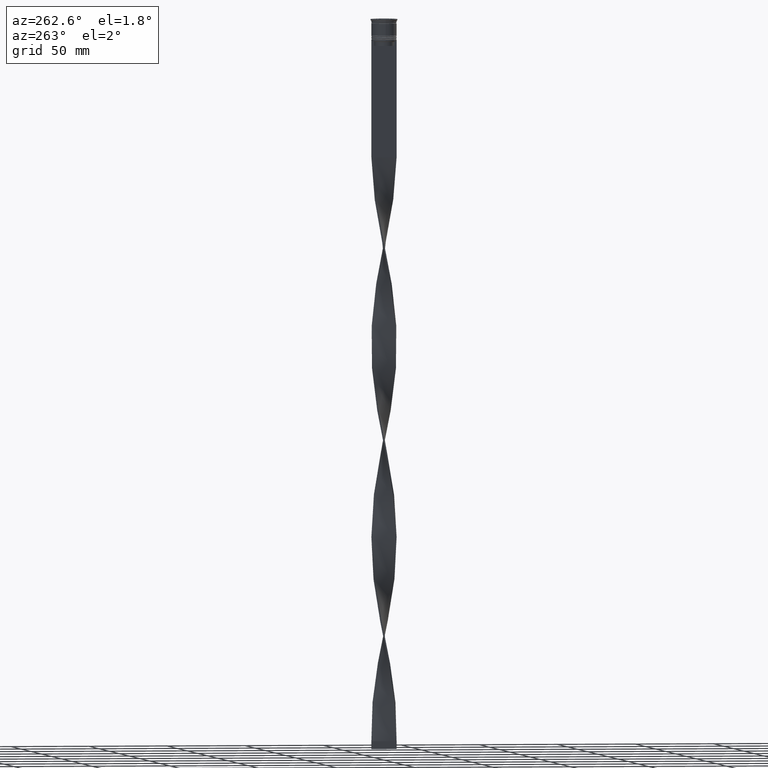
[diagram: clean part render]
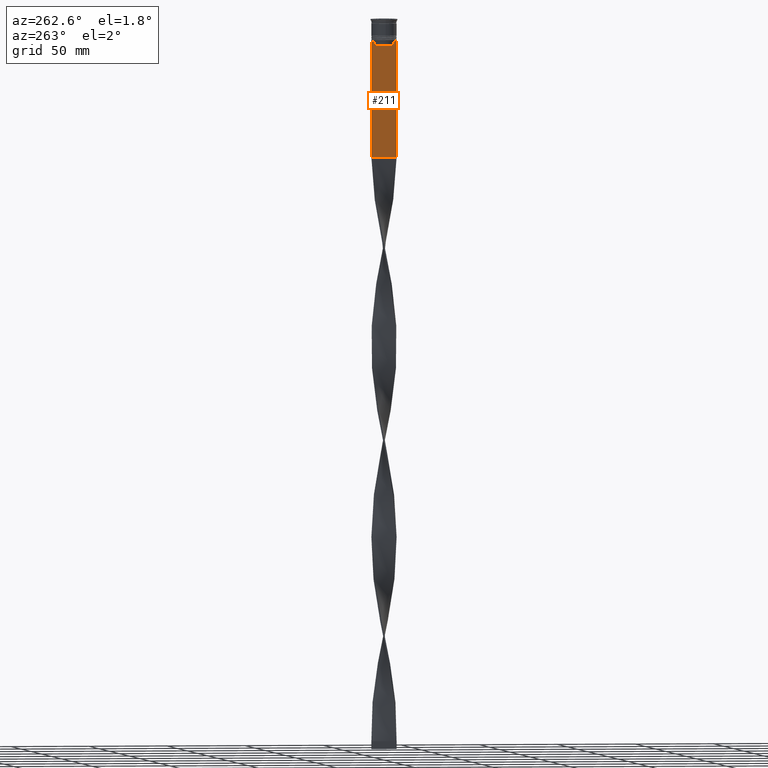
[diagram: same view with one face highlighted and labeled with its STEP entity id]
A machine part, auxiliary view. The second image highlights one B-rep face of the part: STEP entity #211.
In plain terms, the highlighted planar face has unit normal (-1, 0, 0).
Its self-contained STEP definition (entity closure, byte-faithful):
#183 = EDGE_CURVE ( 'NONE', #2274, #248, #3010, .T. ) ;
#211 = ADVANCED_FACE ( 'NONE', ( #3077 ), #2670, .T. ) ;
#240 = EDGE_CURVE ( 'NONE', #1581, #2274, #2376, .T. ) ;
#248 = VERTEX_POINT ( 'NONE', #2468 ) ;
#269 = CARTESIAN_POINT ( 'NONE',  ( -0.4999999999999998890, 7.999999999999996447, -14.00000000000000178 ) ) ;
#288 = CARTESIAN_POINT ( 'NONE',  ( -0.4999999999999998890, -6.380438856379708312, 0.000000000000000000 ) ) ;
#342 = VECTOR ( 'NONE', #2603, 1000.000000000000000 ) ;
#411 = AXIS2_PLACEMENT_3D ( 'NONE', #3398, #692, #2032 ) ;
#486 = EDGE_CURVE ( 'NONE', #1112, #2443, #1568, .T. ) ;
#494 = VECTOR ( 'NONE', #726, 1000.000000000000000 ) ;
#531 = DIRECTION ( 'NONE',  ( 0.000000000000000000, 0.000000000000000000, -1.000000000000000000 ) ) ;
#610 = VERTEX_POINT ( 'NONE', #1055 ) ;
#628 = CARTESIAN_POINT ( 'NONE',  ( -0.4999999999999998890, -8.000000000000003553, -88.00000000000000000 ) ) ;
#648 = LINE ( 'NONE', #2601, #2028 ) ;
#692 = DIRECTION ( 'NONE',  ( -1.000000000000000000, 0.000000000000000000, 0.000000000000000000 ) ) ;
#700 = DIRECTION ( 'NONE',  ( 0.000000000000000000, -1.000000000000000000, 0.000000000000000000 ) ) ;
#726 = DIRECTION ( 'NONE',  ( 0.000000000000000000, 0.000000000000000000, -1.000000000000000000 ) ) ;
#860 = VERTEX_POINT ( 'NONE', #1969 ) ;
#866 = CARTESIAN_POINT ( 'NONE',  ( -0.4999999999999998890, 6.399999999999999467, -17.00000000000000000 ) ) ;
#908 = CARTESIAN_POINT ( 'NONE',  ( -0.4999999999999998890, -6.380438856379708312, -17.00000000000000000 ) ) ;
#921 = CARTESIAN_POINT ( 'NONE',  ( -0.4999999999999998890, -6.380438856379708312, -14.50000000000000000 ) ) ;
#931 = ORIENTED_EDGE ( 'NONE', *, *, #2111, .T. ) ;
#941 = ORIENTED_EDGE ( 'NONE', *, *, #1848, .F. ) ;
#1055 = CARTESIAN_POINT ( 'NONE',  ( -0.4999999999999998890, -7.884161337770806632, -14.00000000000000178 ) ) ;
#1066 = DIRECTION ( 'NONE',  ( 0.000000000000000000, -1.000000000000000000, 0.000000000000000000 ) ) ;
#1112 = VERTEX_POINT ( 'NONE', #3030 ) ;
#1149 = LINE ( 'NONE', #2100, #4100 ) ;
#1157 = ORIENTED_EDGE ( 'NONE', *, *, #3154, .F. ) ;
#1166 = CARTESIAN_POINT ( 'NONE',  ( -0.4999999999999998890, 6.881860213634098500, -14.00000000000000178 ) ) ;
#1188 = CARTESIAN_POINT ( 'NONE',  ( -0.4999999999999998890, 6.380438856379708312, -14.50000000000000000 ) ) ;
#1210 = ORIENTED_EDGE ( 'NONE', *, *, #3994, .F. ) ;
#1245 = CARTESIAN_POINT ( 'NONE',  ( -0.4999999999999998890, -6.881860213634098500, -14.00000000000000178 ) ) ;
#1345 = CARTESIAN_POINT ( 'NONE',  ( -0.4999999999999998890, -8.000000000000003553, -14.00000000000000178 ) ) ;
#1399 = LINE ( 'NONE', #3122, #4037 ) ;
#1501 = LINE ( 'NONE', #866, #3623 ) ;
#1560 = LINE ( 'NONE', #1862, #2932 ) ;
#1568 = LINE ( 'NONE', #628, #342 ) ;
#1577 = EDGE_CURVE ( 'NONE', #2315, #2742, #1560, .T. ) ;
#1581 = VERTEX_POINT ( 'NONE', #269 ) ;
#1597 = LINE ( 'NONE', #288, #1951 ) ;
#1651 = ORIENTED_EDGE ( 'NONE', *, *, #486, .F. ) ;
#1686 = EDGE_CURVE ( 'NONE', #248, #2315, #2869, .T. ) ;
#1801 = CARTESIAN_POINT ( 'NONE',  ( -0.4999999999999998890, 7.999999999999996447, -88.00000000000000000 ) ) ;
#1848 = EDGE_CURVE ( 'NONE', #610, #2277, #648, .T. ) ;
#1862 = CARTESIAN_POINT ( 'NONE',  ( -0.4999999999999998890, 6.380438856379708312, 0.000000000000000000 ) ) ;
#1878 = ORIENTED_EDGE ( 'NONE', *, *, #1686, .F. ) ;
#1885 = CARTESIAN_POINT ( 'NONE',  ( -0.4999999999999998890, 6.380438856379708312, -17.00000000000000000 ) ) ;
#1951 = VECTOR ( 'NONE', #3928, 1000.000000000000000 ) ;
#1969 = CARTESIAN_POINT ( 'NONE',  ( -0.4999999999999998890, -6.380438856379708312, -14.50000000000000000 ) ) ;
#1975 = B_SPLINE_CURVE_WITH_KNOTS ( 'NONE', 3,
 ( #921, #2475, #3188, #1245 ),
 .UNSPECIFIED., .F., .F.,
 ( 4, 4 ),
 ( 0.02996184199614749730, 0.03067452609193703841 ),
 .UNSPECIFIED. ) ;
#2014 = VERTEX_POINT ( 'NONE', #908 ) ;
#2028 = VECTOR ( 'NONE', #2963, 1000.000000000000000 ) ;
#2032 = DIRECTION ( 'NONE',  ( 0.000000000000000000, 0.000000000000000000, 1.000000000000000000 ) ) ;
#2055 = CARTESIAN_POINT ( 'NONE',  ( -0.4999999999999998890, -6.881860213634098500, -14.00000000000000178 ) ) ;
#2100 = CARTESIAN_POINT ( 'NONE',  ( -0.4999999999999998890, -8.000000000000003553, -14.00000000000000178 ) ) ;
#2111 = EDGE_CURVE ( 'NONE', #1581, #2443, #3326, .T. ) ;
#2274 = VERTEX_POINT ( 'NONE', #2836 ) ;
#2277 = VERTEX_POINT ( 'NONE', #4171 ) ;
#2315 = VERTEX_POINT ( 'NONE', #1188 ) ;
#2361 = VECTOR ( 'NONE', #2391, 1000.000000000000000 ) ;
#2376 = LINE ( 'NONE', #3702, #2361 ) ;
#2391 = DIRECTION ( 'NONE',  ( 0.000000000000000000, -1.000000000000000000, 0.000000000000000000 ) ) ;
#2443 = VERTEX_POINT ( 'NONE', #1801 ) ;
#2468 = CARTESIAN_POINT ( 'NONE',  ( -0.4999999999999998890, 6.881860213634098500, -14.00000000000000178 ) ) ;
#2475 = CARTESIAN_POINT ( 'NONE',  ( -0.4999999999999998890, -6.547597841511246131, -14.33335192438652328 ) ) ;
#2530 = ORIENTED_EDGE ( 'NONE', *, *, #240, .F. ) ;
#2560 = VECTOR ( 'NONE', #1066, 1000.000000000000000 ) ;
#2601 = CARTESIAN_POINT ( 'NONE',  ( -0.4999999999999998890, -8.000000000000003553, -14.00000000000000178 ) ) ;
#2603 = DIRECTION ( 'NONE',  ( 0.000000000000000000, 1.000000000000000000, 0.000000000000000000 ) ) ;
#2623 = VERTEX_POINT ( 'NONE', #2055 ) ;
#2670 = PLANE ( 'NONE',  #411 ) ;
#2723 = DIRECTION ( 'NONE',  ( 0.000000000000000000, 0.000000000000000000, -1.000000000000000000 ) ) ;
#2742 = VERTEX_POINT ( 'NONE', #1885 ) ;
#2802 = CARTESIAN_POINT ( 'NONE',  ( -0.4999999999999998890, 6.714736947114692711, -14.16668390704818847 ) ) ;
#2836 = CARTESIAN_POINT ( 'NONE',  ( -0.4999999999999998890, 7.884161337770806632, -14.00000000000000178 ) ) ;
#2869 = B_SPLINE_CURVE_WITH_KNOTS ( 'NONE', 3,
 ( #1166, #2802, #3198, #4177 ),
 .UNSPECIFIED., .F., .F.,
 ( 4, 4 ),
 ( 0.01172465562756038263, 0.01243276816391822651 ),
 .UNSPECIFIED. ) ;
#2875 = ORIENTED_EDGE ( 'NONE', *, *, #1577, .F. ) ;
#2932 = VECTOR ( 'NONE', #531, 1000.000000000000000 ) ;
#2963 = DIRECTION ( 'NONE',  ( 0.000000000000000000, -1.000000000000000000, 0.000000000000000000 ) ) ;
#3010 = LINE ( 'NONE', #1345, #2560 ) ;
#3030 = CARTESIAN_POINT ( 'NONE',  ( -0.4999999999999998890, -8.000000000000003553, -88.00000000000000000 ) ) ;
#3038 = EDGE_CURVE ( 'NONE', #2014, #860, #1597, .T. ) ;
#3051 = ORIENTED_EDGE ( 'NONE', *, *, #4328, .F. ) ;
#3053 = ORIENTED_EDGE ( 'NONE', *, *, #183, .F. ) ;
#3077 = FACE_OUTER_BOUND ( 'NONE', #3938, .T. ) ;
#3122 = CARTESIAN_POINT ( 'NONE',  ( -0.4999999999999998890, -8.000000000000003553, 2.031219541881394530 ) ) ;
#3154 = EDGE_CURVE ( 'NONE', #2623, #610, #1149, .T. ) ;
#3188 = CARTESIAN_POINT ( 'NONE',  ( -0.4999999999999998890, -6.714736947305992132, -14.16668390685738999 ) ) ;
#3198 = CARTESIAN_POINT ( 'NONE',  ( -0.4999999999999998890, 6.547597841304911626, -14.33335192459222718 ) ) ;
#3220 = ORIENTED_EDGE ( 'NONE', *, *, #3038, .F. ) ;
#3326 = LINE ( 'NONE', #3671, #494 ) ;
#3398 = CARTESIAN_POINT ( 'NONE',  ( -0.4999999999999998890, -8.000000000000003553, 2.031219541881394530 ) ) ;
#3623 = VECTOR ( 'NONE', #4160, 1000.000000000000000 ) ;
#3647 = ORIENTED_EDGE ( 'NONE', *, *, #3749, .F. ) ;
#3671 = CARTESIAN_POINT ( 'NONE',  ( -0.4999999999999998890, 7.999999999999996447, 2.031219541881394530 ) ) ;
#3702 = CARTESIAN_POINT ( 'NONE',  ( -0.4999999999999998890, -8.000000000000003553, -14.00000000000000178 ) ) ;
#3749 = EDGE_CURVE ( 'NONE', #2277, #1112, #1399, .T. ) ;
#3928 = DIRECTION ( 'NONE',  ( -0.000000000000000000, -0.000000000000000000, 1.000000000000000000 ) ) ;
#3938 = EDGE_LOOP ( 'NONE', ( #1878, #3053, #2530, #931, #1651, #3647, #941, #1157, #1210, #3220, #3051, #2875 ) ) ;
#3994 = EDGE_CURVE ( 'NONE', #860, #2623, #1975, .T. ) ;
#4037 = VECTOR ( 'NONE', #2723, 1000.000000000000000 ) ;
#4100 = VECTOR ( 'NONE', #700, 1000.000000000000000 ) ;
#4160 = DIRECTION ( 'NONE',  ( 0.000000000000000000, -1.000000000000000000, 0.000000000000000000 ) ) ;
#4171 = CARTESIAN_POINT ( 'NONE',  ( -0.4999999999999998890, -8.000000000000003553, -14.00000000000000178 ) ) ;
#4177 = CARTESIAN_POINT ( 'NONE',  ( -0.4999999999999998890, 6.380438856379708312, -14.50000000000000000 ) ) ;
#4328 = EDGE_CURVE ( 'NONE', #2742, #2014, #1501, .T. ) ;